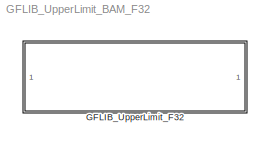
MODEL GFLIB_UpperLimit_BAM_F32
KIND model
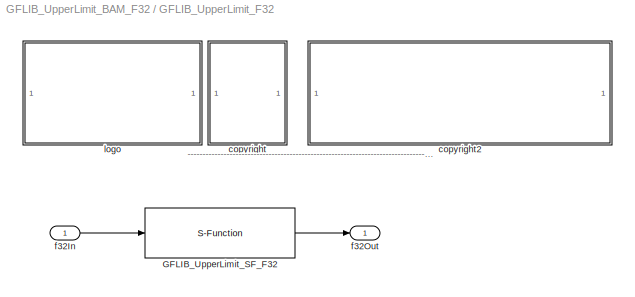
BLOCK [SubSystem] GFLIB_UpperLimit_F32
  FunctionWithSeparateData = off
  MaskDescription = Bit accurate model of GFLIB_UpperLimit function.
  MaskDisplay = color('black');port_label('input',1,'f32In');port_label('output',1,'f32Out');color('black');disp('GFLIB_UpperLimit_F32');color('blue');text(tX,tY, 'BAM', 'horizontalAlignment', 'center');
  MaskEnableString = on
  MaskHideContents = off
  MaskIconFrame = on
  MaskIconOpaque = on
  MaskIconRotate = none
  MaskIconUnits = pixels
  MaskInitialization = pos = get_param(gcb, 'Position');width = pos(3) - pos(1); height = pos(4) - pos(2);tX=width/2;tY=height*0.9;
  MaskPortRotate = default
  MaskPromptString = f32UpperLim
  MaskStyleString = edit
  MaskToolTipString = on
  MaskTunableValueString = on
  MaskType = GFLIB_UpperLimit_F32
  MaskValueString = f32UpperLim
  MaskVariables = f32UpperLim=@1;
  MaskVisibilityString = on
  MinAlgLoopOccurrences = off
  Opaque = off
  Ports = [1, 1]
  PropExecContextOutsideSubsystem = off
  RTWSystemCode = Auto
  RequestExecContextInheritance = off
BLOCK [S-Function] GFLIB_UpperLimit_F32/GFLIB_UpperLimit_SF_F32
  EnableBusSupport = off
  FunctionName = GFLIB_UpperLimit_SF_F32
  Parameters = f32UpperLim
  Ports = [1, 1]
BLOCK [SubSystem] GFLIB_UpperLimit_F32/<copyright redacted>
  FunctionWithSeparateData = off
  MaskDisplay = text(10,90,'FILE:');text(10,75,'DESRIPTION:')text(10,60,'<copyright redacted>
  MaskHideContents = off
  MaskIconFrame = off
  MaskIconOpaque = on
  MaskIconRotate = none
  MaskIconUnits = pixels
  MaskPortRotate = default
  MinAlgLoopOccurrences = off
  Opaque = off
  Ports = []
  PropExecContextOutsideSubsystem = off
  RTWSystemCode = Auto
  RequestExecContextInheritance = off
BLOCK [SubSystem] GFLIB_UpperLimit_F32/copyright2
  FunctionWithSeparateData = off
  MaskDisplay = text(10,90,'GFLIB_UpperLimit_BAM_F32.mdl');text(10,75,'Upper limit function.');text(10,60,'Freescale')text(10,45,'0.1');text(10,30,'13-Sep-2011');
  MaskHideContents = off
  MaskIconFrame = off
  MaskIconOpaque = on
  MaskIconRotate = none
  MaskIconUnits = pixels
  MaskPortRotate = default
  MinAlgLoopOccurrences = off
  Opaque = off
  Ports = []
  PropExecContextOutsideSubsystem = off
  RTWSystemCode = Auto
  RequestExecContextInheritance = off
BLOCK [Inport] GFLIB_UpperLimit_F32/f32In
  IconDisplay = Port number
  OutDataType = fixdt(1, 16)
  OutScaling = 2^0
BLOCK [Outport] GFLIB_UpperLimit_F32/f32Out
  IconDisplay = Port number
  OutDataType = fixdt(1, 16)
  OutScaling = 2^0
BLOCK [SubSystem] GFLIB_UpperLimit_F32/logo
  FunctionWithSeparateData = off
  MaskDisplay = image(imread('logo.jpg'))
  MaskHideContents = off
  MaskIconFrame = off
  MaskIconOpaque = on
  MaskIconRotate = none
  MaskIconUnits = autoscale
  MaskPortRotate = default
  MinAlgLoopOccurrences = off
  Opaque = off
  Ports = []
  PropExecContextOutsideSubsystem = off
  RTWSystemCode = Auto
  RequestExecContextInheritance = off
ANNOTATION GFLIB_UpperLimit_F32: ---------------------------------------------------------------------------------------------------------------------------------------------------------------------------------------------------
LINE GFLIB_UpperLimit_F32/GFLIB_UpperLimit_SF_F32:1 -> GFLIB_UpperLimit_F32/f32Out:1
LINE GFLIB_UpperLimit_F32/f32In:1 -> GFLIB_UpperLimit_F32/GFLIB_UpperLimit_SF_F32:1
